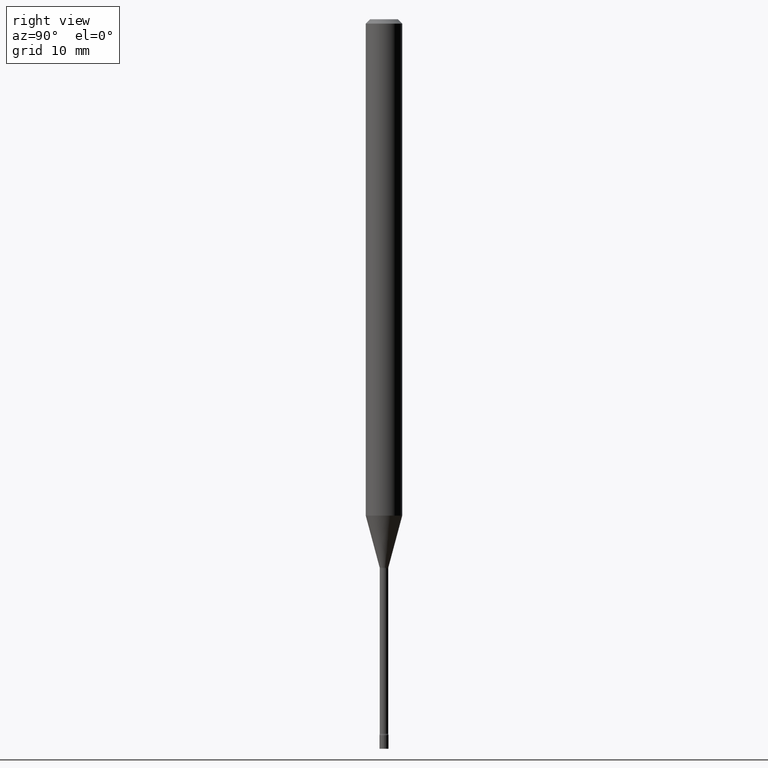
[diagram: clean part render]
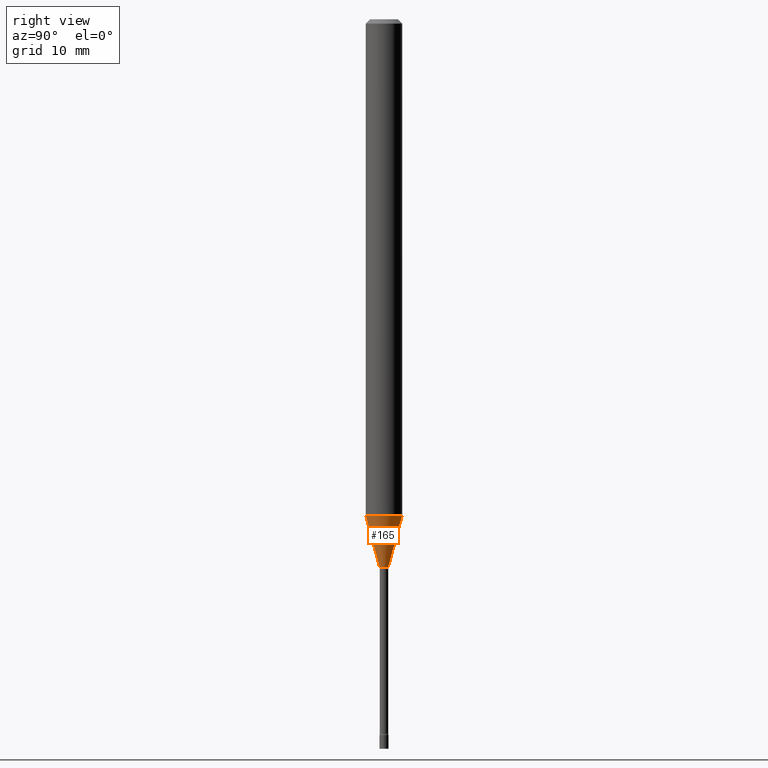
[diagram: same view with one face highlighted and labeled with its STEP entity id]
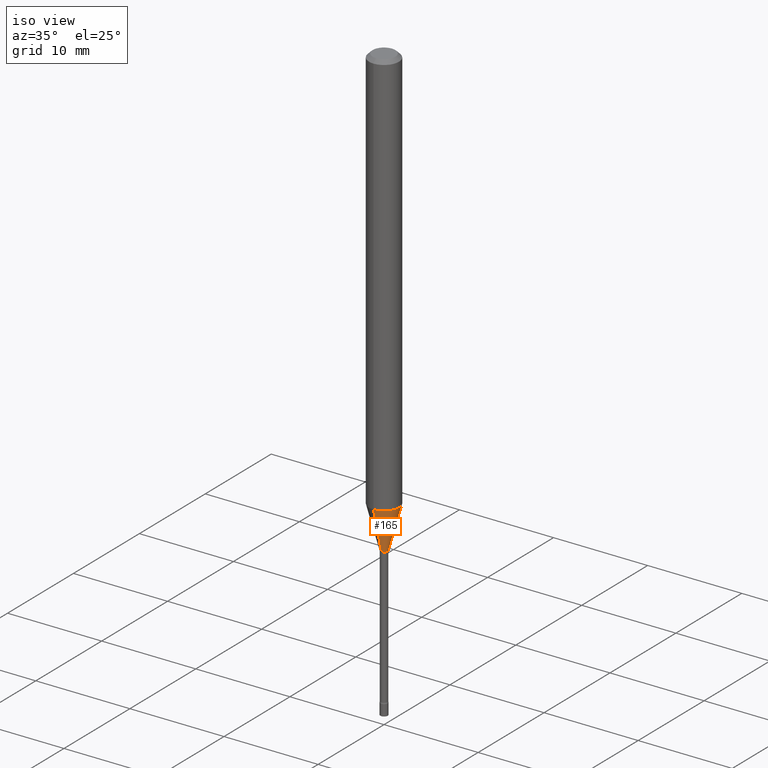
[diagram: same view with one face highlighted and labeled with its STEP entity id]
A machine part, right view. The second image highlights one B-rep face of the part: STEP entity #165.
A second angle (iso view) of the same face is appended — the face is thin or edge-on in the first view.
In plain terms, the highlighted conical surface has half-angle 15 deg.
Its self-contained STEP definition (entity closure, byte-faithful):
#62 = ORIENTED_EDGE ( 'NONE', *, *, #477, .T. ) ;
#66 = ORIENTED_EDGE ( 'NONE', *, *, #393, .F. ) ;
#118 = ORIENTED_EDGE ( 'NONE', *, *, #299, .T. ) ;
#119 = CIRCLE ( 'NONE', #515, 0.01506111260566398054 ) ;
#153 = DIRECTION ( 'NONE',  ( -2.445476843711301274E-29, 3.491469828648210264E-15, 1.000000000000000000 ) ) ;
#165 = ADVANCED_FACE ( 'NONE', ( #434 ), #205, .T. ) ;
#187 = CIRCLE ( 'NONE', #235, 0.06250000000000000000 ) ;
#200 = CARTESIAN_POINT ( 'NONE',  ( -4.364351673553500570E-16, -0.06250000000000595357, -1.701048163777072464 ) ) ;
#205 = CONICAL_SURFACE ( 'NONE', #341, 0.01506111260566398054, 0.2617993877991499074 ) ;
#212 = CARTESIAN_POINT ( 'NONE',  ( -1.051711872097357942E-16, -0.01506111260567053779, -1.878092501787273161 ) ) ;
#214 = VERTEX_POINT ( 'NONE', #256 ) ;
#217 = VERTEX_POINT ( 'NONE', #448 ) ;
#235 = AXIS2_PLACEMENT_3D ( 'NONE', #363, #153, #403 ) ;
#256 = CARTESIAN_POINT ( 'NONE',  ( 4.440892098501039328E-16, 0.06249999999999404643, -1.701048163777073130 ) ) ;
#260 = DIRECTION ( 'NONE',  ( -1.807323732225327773E-15, -0.2588190451025178529, 0.9659258262890690894 ) ) ;
#296 = CARTESIAN_POINT ( 'NONE',  ( 2.755524256971723102E-16, 0.01506111260565742675, -1.878092501787273161 ) ) ;
#299 = EDGE_CURVE ( 'NONE', #217, #478, #119, .T. ) ;
#325 = DIRECTION ( 'NONE',  ( -6.982962677686265922E-15, -1.000000000000000000, 0.000000000000000000 ) ) ;
#327 = LINE ( 'NONE', #331, #455 ) ;
#331 = CARTESIAN_POINT ( 'NONE',  ( 1.070156415442400836E-16, 0.01506111260565742502, -1.878092501787273161 ) ) ;
#333 = CARTESIAN_POINT ( 'NONE',  ( 4.592831723468601877E-29, -6.557303305400699208E-15, -1.878092501787273161 ) ) ;
#341 = AXIS2_PLACEMENT_3D ( 'NONE', #333, #360, #325 ) ;
#357 = VECTOR ( 'NONE', #260, 39.37007874015748143 ) ;
#360 = DIRECTION ( 'NONE',  ( -2.445476843711301274E-29, 3.491469828648210264E-15, 1.000000000000000000 ) ) ;
#363 = CARTESIAN_POINT ( 'NONE',  ( 4.159873894554460783E-29, -5.939158340905088868E-15, -1.701048163777072908 ) ) ;
#372 = DIRECTION ( 'NONE',  ( -6.982962677686265922E-15, -1.000000000000000000, 0.000000000000000000 ) ) ;
#376 = ORIENTED_EDGE ( 'NONE', *, *, #482, .F. ) ;
#382 = LINE ( 'NONE', #212, #357 ) ;
#393 = EDGE_CURVE ( 'NONE', #217, #509, #382, .T. ) ;
#403 = DIRECTION ( 'NONE',  ( -6.982962677686265922E-15, -1.000000000000000000, 4.370956789862821150E-15 ) ) ;
#420 = EDGE_LOOP ( 'NONE', ( #118, #62, #376, #66 ) ) ;
#434 = FACE_OUTER_BOUND ( 'NONE', #420, .T. ) ;
#440 = DIRECTION ( 'NONE',  ( -2.445476843711301274E-29, 3.491469828648210264E-15, 1.000000000000000000 ) ) ;
#445 = CARTESIAN_POINT ( 'NONE',  ( 4.592831723468601877E-29, -6.557303305400699208E-15, -1.878092501787273161 ) ) ;
#448 = CARTESIAN_POINT ( 'NONE',  ( -1.051711872097357942E-16, -0.01506111260567053779, -1.878092501787273161 ) ) ;
#455 = VECTOR ( 'NONE', #473, 39.37007874015748854 ) ;
#473 = DIRECTION ( 'NONE',  ( 1.839019923739597554E-15, 0.2588190451025245697, 0.9659258262890670910 ) ) ;
#477 = EDGE_CURVE ( 'NONE', #478, #214, #327, .T. ) ;
#478 = VERTEX_POINT ( 'NONE', #296 ) ;
#482 = EDGE_CURVE ( 'NONE', #509, #214, #187, .T. ) ;
#509 = VERTEX_POINT ( 'NONE', #200 ) ;
#515 = AXIS2_PLACEMENT_3D ( 'NONE', #445, #440, #372 ) ;